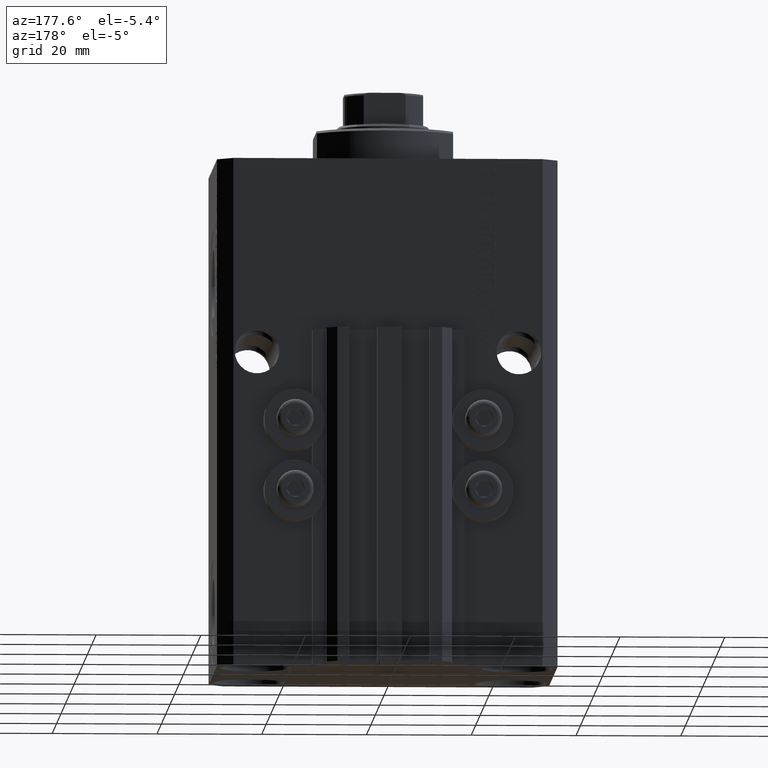
[diagram: clean part render]
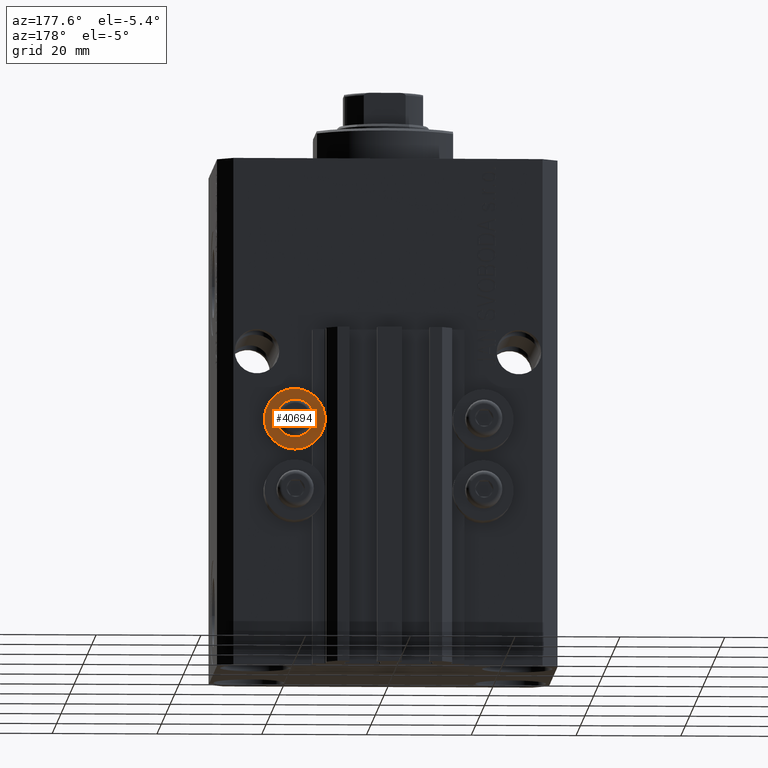
[diagram: same view with one face highlighted and labeled with its STEP entity id]
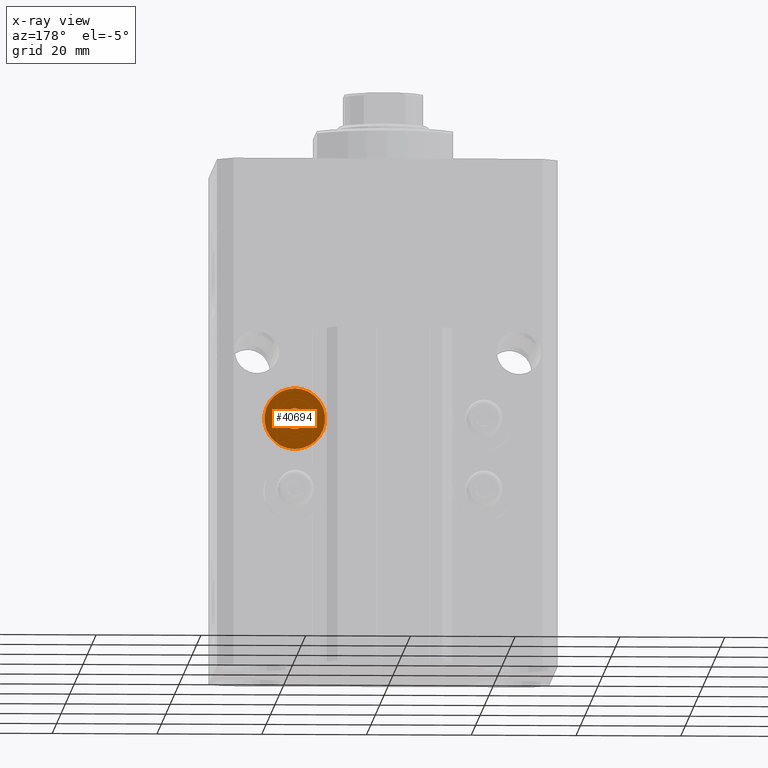
[diagram: x-ray of the same camera — body ghosted, the highlighted face saturated]
A machine part, auxiliary view. The second image highlights one B-rep face of the part: STEP entity #40694.
The next image is the same camera in x-ray: the body ghosted, the highlighted face saturated — about 0% of this face is hidden behind the body in this view.
In plain terms, the highlighted planar face has unit normal (0, -1, 0).
Its self-contained STEP definition (entity closure, byte-faithful):
#30 = DIRECTION ( 'NONE',  ( 0.000000000000000000, 0.000000000000000000, 1.000000000000000000 ) ) ;
#4508 = VERTEX_POINT ( 'NONE', #8368 ) ;
#4532 = AXIS2_PLACEMENT_3D ( 'NONE', #42749, #10043, #30 ) ;
#5309 = CIRCLE ( 'NONE', #37351, 2.000000000000001776 ) ;
#5334 = PLANE ( 'NONE',  #35970 ) ;
#6270 = ORIENTED_EDGE ( 'NONE', *, *, #18197, .F. ) ;
#7829 = CARTESIAN_POINT ( 'NONE',  ( 18.00000000000000355, 27.49999999996051514, -50.39999999999999858 ) ) ;
#8307 = CIRCLE ( 'NONE', #4532, 2.000000000000001776 ) ;
#8368 = CARTESIAN_POINT ( 'NONE',  ( 18.00000000000000355, 27.49999999996051514, -48.39999999999999858 ) ) ;
#8598 = VERTEX_POINT ( 'NONE', #23346 ) ;
#10043 = DIRECTION ( 'NONE',  ( -0.000000000000000000, -1.000000000000000000, -0.000000000000000000 ) ) ;
#10863 = AXIS2_PLACEMENT_3D ( 'NONE', #14663, #40198, #29255 ) ;
#11472 = DIRECTION ( 'NONE',  ( 0.000000000000000000, 0.000000000000000000, 1.000000000000000000 ) ) ;
#12220 = EDGE_CURVE ( 'NONE', #8598, #4508, #5309, .T. ) ;
#14376 = DIRECTION ( 'NONE',  ( -0.000000000000000000, -1.000000000000000000, -0.000000000000000000 ) ) ;
#14663 = CARTESIAN_POINT ( 'NONE',  ( 18.00000000000000355, 27.49999999996051514, -50.39999999999999858 ) ) ;
#16797 = CARTESIAN_POINT ( 'NONE',  ( 12.20000000000000284, 27.49999999996051514, -50.39999999999999858 ) ) ;
#17753 = CARTESIAN_POINT ( 'NONE',  ( 18.00000000000000355, 27.49999999996051514, -56.20000000000000284 ) ) ;
#17775 = AXIS2_PLACEMENT_3D ( 'NONE', #7829, #39628, #39861 ) ;
#18197 = EDGE_CURVE ( 'NONE', #38039, #42449, #27667, .T. ) ;
#18539 = EDGE_CURVE ( 'NONE', #42449, #38039, #45180, .T. ) ;
#19630 = ORIENTED_EDGE ( 'NONE', *, *, #12220, .T. ) ;
#20397 = DIRECTION ( 'NONE',  ( -0.000000000000000000, 0.000000000000000000, -1.000000000000000000 ) ) ;
#20402 = EDGE_LOOP ( 'NONE', ( #33300, #6270 ) ) ;
#23346 = CARTESIAN_POINT ( 'NONE',  ( 18.00000000000000355, 27.49999999996051514, -52.40000000000000568 ) ) ;
#23737 = FACE_OUTER_BOUND ( 'NONE', #20402, .T. ) ;
#24724 = CARTESIAN_POINT ( 'NONE',  ( 18.00000000000000355, 27.49999999996051514, -44.60000000000000142 ) ) ;
#27667 = CIRCLE ( 'NONE', #10863, 5.799999999999999822 ) ;
#28030 = FACE_BOUND ( 'NONE', #43231, .T. ) ;
#29255 = DIRECTION ( 'NONE',  ( 0.000000000000000000, 0.000000000000000000, 1.000000000000000000 ) ) ;
#33300 = ORIENTED_EDGE ( 'NONE', *, *, #18539, .F. ) ;
#35631 = EDGE_CURVE ( 'NONE', #4508, #8598, #8307, .T. ) ;
#35970 = AXIS2_PLACEMENT_3D ( 'NONE', #16797, #41852, #20397 ) ;
#36341 = CARTESIAN_POINT ( 'NONE',  ( 18.00000000000000355, 27.49999999996051514, -50.39999999999999858 ) ) ;
#37351 = AXIS2_PLACEMENT_3D ( 'NONE', #36341, #14376, #11472 ) ;
#38039 = VERTEX_POINT ( 'NONE', #17753 ) ;
#39628 = DIRECTION ( 'NONE',  ( -0.000000000000000000, -1.000000000000000000, -0.000000000000000000 ) ) ;
#39861 = DIRECTION ( 'NONE',  ( 0.000000000000000000, 0.000000000000000000, 1.000000000000000000 ) ) ;
#40198 = DIRECTION ( 'NONE',  ( -0.000000000000000000, -1.000000000000000000, -0.000000000000000000 ) ) ;
#40694 = ADVANCED_FACE ( 'NONE', ( #28030, #23737 ), #5334, .F. ) ;
#41852 = DIRECTION ( 'NONE',  ( 0.000000000000000000, -1.000000000000000000, -0.000000000000000000 ) ) ;
#42449 = VERTEX_POINT ( 'NONE', #24724 ) ;
#42749 = CARTESIAN_POINT ( 'NONE',  ( 18.00000000000000355, 27.49999999996051514, -50.39999999999999858 ) ) ;
#43231 = EDGE_LOOP ( 'NONE', ( #44284, #19630 ) ) ;
#44284 = ORIENTED_EDGE ( 'NONE', *, *, #35631, .T. ) ;
#45180 = CIRCLE ( 'NONE', #17775, 5.799999999999999822 ) ;